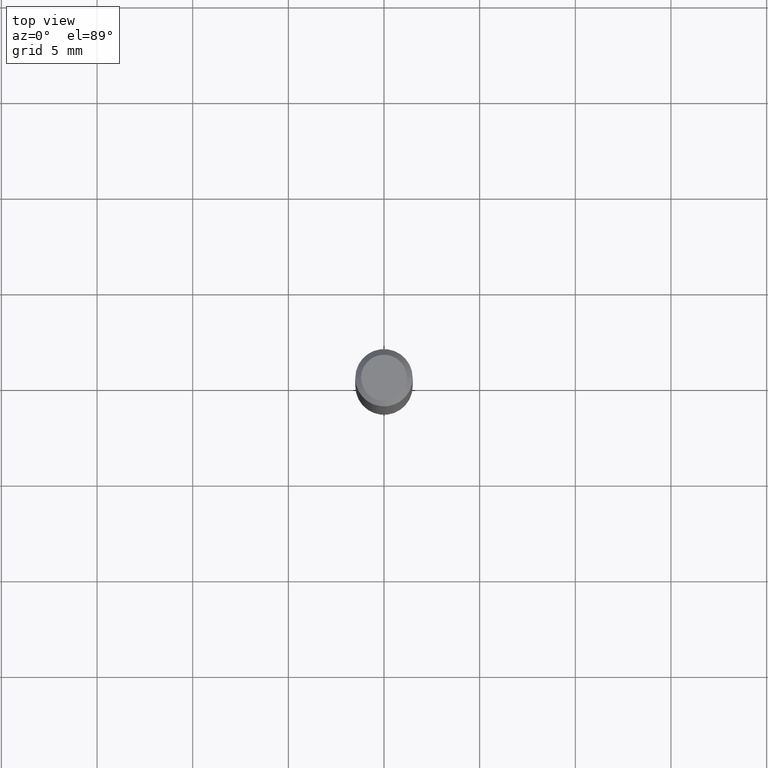
[diagram: clean part render]
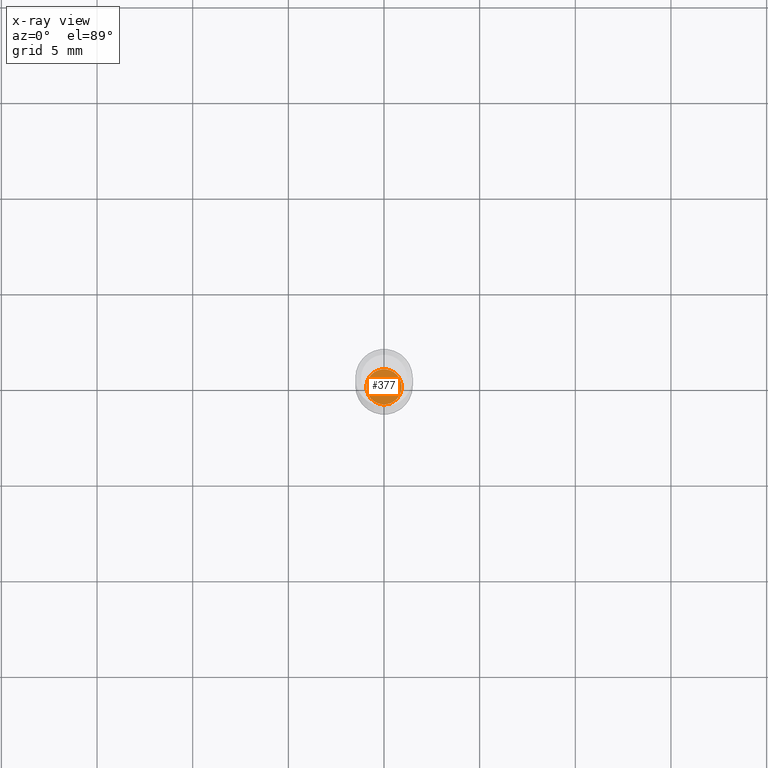
[diagram: x-ray — body ghosted, one internal face saturated and labeled with its STEP entity id]
A machine part, top view, then the same camera in x-ray: the body is ghosted and one INTERNAL B-rep face — a face not visible from any outside direction — is saturated and labeled: STEP entity #377.
In plain terms, the highlighted planar face has unit normal (-0, 0, 1).
Its self-contained STEP definition (entity closure, byte-faithful):
#1 = AXIS2_PLACEMENT_3D ( 'NONE', #204, #57, #483 ) ;
#2 = EDGE_LOOP ( 'NONE', ( #145, #464 ) ) ;
#17 = AXIS2_PLACEMENT_3D ( 'NONE', #447, #136, #65 ) ;
#57 = DIRECTION ( 'NONE',  ( -2.438088387897960049E-29, 3.491481338843145188E-15, 1.000000000000000000 ) ) ;
#65 = DIRECTION ( 'NONE',  ( 1.000000000000000000, -6.982962677686268288E-15, 0.000000000000000000 ) ) ;
#98 = CARTESIAN_POINT ( 'NONE',  ( -0.03629999999999999893, -3.560850085108795212E-15, -1.094499999999999806 ) ) ;
#105 = PLANE ( 'NONE',  #1 ) ;
#114 = DIRECTION ( 'NONE',  ( 1.000000000000000000, -6.982962677686268288E-15, 0.000000000000000000 ) ) ;
#136 = DIRECTION ( 'NONE',  ( -2.445468806185136597E-29, 3.491481338843145583E-15, 1.000000000000000000 ) ) ;
#145 = ORIENTED_EDGE ( 'NONE', *, *, #167, .F. ) ;
#157 = VERTEX_POINT ( 'NONE', #182 ) ;
#167 = EDGE_CURVE ( 'NONE', #157, #420, #295, .T. ) ;
#170 = FACE_OUTER_BOUND ( 'NONE', #2, .T. ) ;
#181 = DIRECTION ( 'NONE',  ( -2.445468806185136597E-29, 3.491481338843145583E-15, 1.000000000000000000 ) ) ;
#182 = CARTESIAN_POINT ( 'NONE',  ( 0.03629999999999999893, -4.074907870563833769E-15, -1.094499999999999806 ) ) ;
#196 = CIRCLE ( 'NONE', #17, 0.03629999999999999893 ) ;
#204 = CARTESIAN_POINT ( 'NONE',  ( 2.676565608369631794E-29, -3.821426325363822773E-15, -1.094499999999999806 ) ) ;
#295 = CIRCLE ( 'NONE', #402, 0.03629999999999999893 ) ;
#377 = ADVANCED_FACE ( 'NONE', ( #170 ), #105, .F. ) ;
#390 = EDGE_CURVE ( 'NONE', #420, #157, #196, .T. ) ;
#402 = AXIS2_PLACEMENT_3D ( 'NONE', #446, #181, #114 ) ;
#420 = VERTEX_POINT ( 'NONE', #98 ) ;
#446 = CARTESIAN_POINT ( 'NONE',  ( 2.676565608369631794E-29, -3.821426325363822773E-15, -1.094499999999999806 ) ) ;
#447 = CARTESIAN_POINT ( 'NONE',  ( 2.676565608369631794E-29, -3.821426325363822773E-15, -1.094499999999999806 ) ) ;
#464 = ORIENTED_EDGE ( 'NONE', *, *, #390, .F. ) ;
#483 = DIRECTION ( 'NONE',  ( 1.000000000000000000, -6.982962677686265922E-15, 4.876176775795935793E-29 ) ) ;